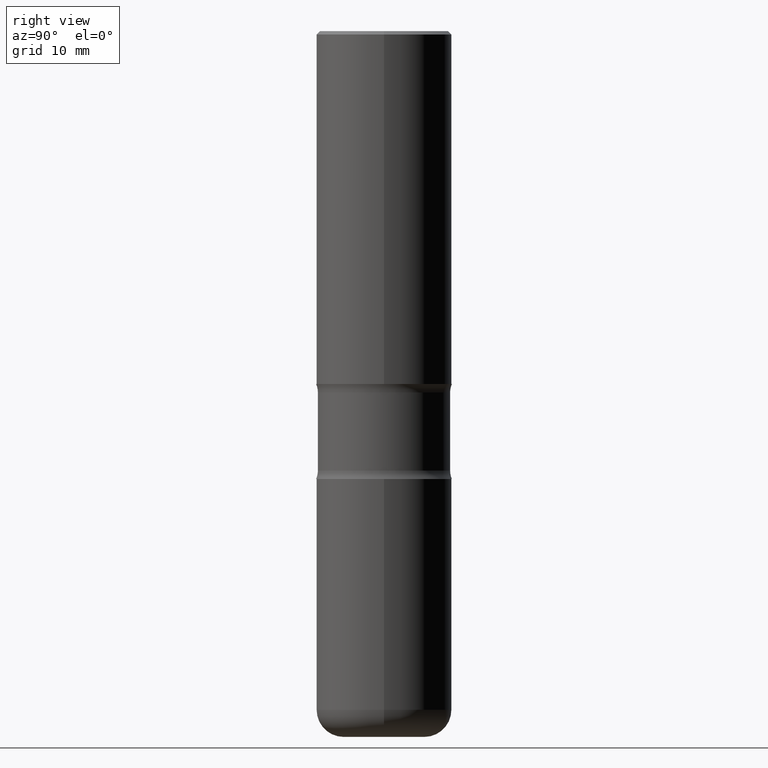
[diagram: clean part render]
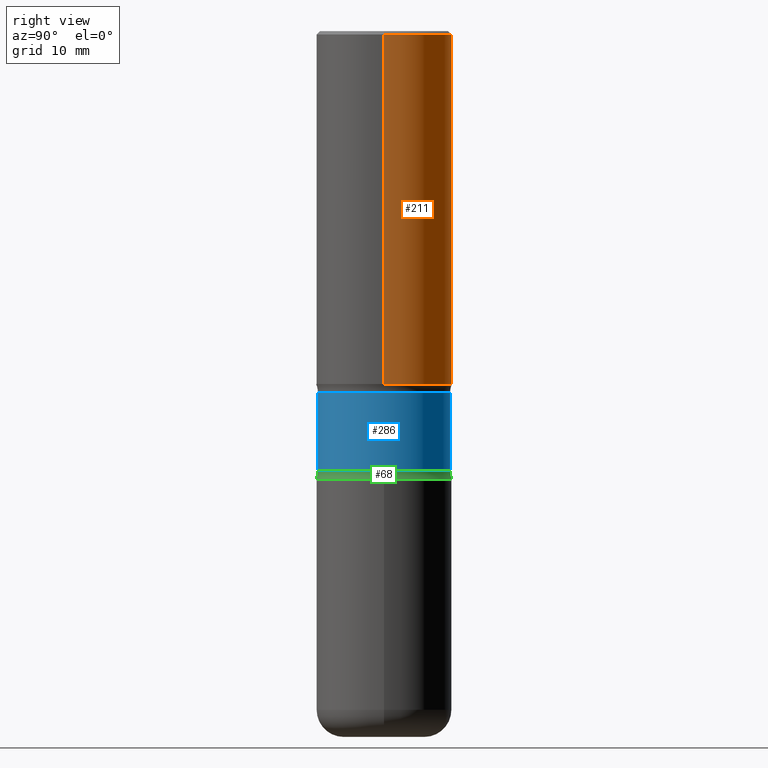
[diagram: same view with three faces highlighted in distinct colors, each labeled with its STEP entity id]
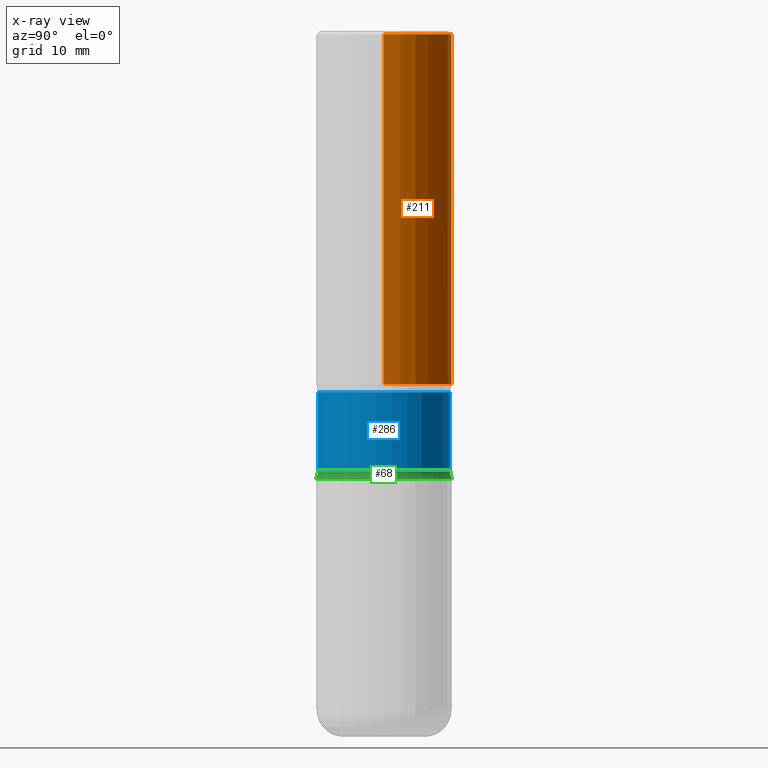
[diagram: x-ray of the same camera — body ghosted, the three highlighted faces saturated]
A machine part, right view with three faces highlighted in distinct colors.
The next image is the same camera in x-ray (body ghosted, the three faces saturated) — at least one of them is partly hidden behind the body in this view.
Their STEP definitions:

[orange] entity #211 — the highlighted cylindrical surface (partial cylindrical patch) has radius 10 mm, axis along (-0, 0, 1).
#12 = ORIENTED_EDGE ( 'NONE', *, *, #64, .T. ) ;
#34 = EDGE_LOOP ( 'NONE', ( #117, #12, #39, #416 ) ) ;
#39 = ORIENTED_EDGE ( 'NONE', *, *, #349, .F. ) ;
#59 = CIRCLE ( 'NONE', #430, 0.3936999999999998279 ) ;
#64 = EDGE_CURVE ( 'NONE', #204, #171, #121, .T. ) ;
#66 = CARTESIAN_POINT ( 'NONE',  ( -0.3937000000000001609, -8.115629352077008460E-16, -2.047299999999999898 ) ) ;
#104 = CARTESIAN_POINT ( 'NONE',  ( 0.000000000000000000, 0.000000000000000000, 0.000000000000000000 ) ) ;
#117 = ORIENTED_EDGE ( 'NONE', *, *, #328, .T. ) ;
#121 = LINE ( 'NONE', #339, #411 ) ;
#127 = DIRECTION ( 'NONE',  ( -2.445468806185136597E-29, 3.491481338843145583E-15, 1.000000000000000000 ) ) ;
#149 = DIRECTION ( 'NONE',  ( 1.000000000000000000, -6.982962677686269077E-15, 0.000000000000000000 ) ) ;
#155 = FACE_OUTER_BOUND ( 'NONE', #34, .T. ) ;
#171 = VERTEX_POINT ( 'NONE', #281 ) ;
#180 = CARTESIAN_POINT ( 'NONE',  ( 4.890937612370289799E-31, -6.982962677686315028E-17, -0.02000000000000006981 ) ) ;
#204 = VERTEX_POINT ( 'NONE', #66 ) ;
#211 = ADVANCED_FACE ( 'NONE', ( #155 ), #496, .T. ) ;
#261 = AXIS2_PLACEMENT_3D ( 'NONE', #104, #299, #506 ) ;
#264 = DIRECTION ( 'NONE',  ( 1.000000000000000000, -6.982962677686266711E-15, 0.000000000000000000 ) ) ;
#281 = CARTESIAN_POINT ( 'NONE',  ( -0.3936999999999998279, 2.679362779428218735E-15, -0.02000000000000006981 ) ) ;
#295 = DIRECTION ( 'NONE',  ( -2.445468806185136877E-29, 3.491481338843145188E-15, 1.000000000000000000 ) ) ;
#299 = DIRECTION ( 'NONE',  ( -2.445468806185136597E-29, 3.491481338843145583E-15, 1.000000000000000000 ) ) ;
#305 = VECTOR ( 'NONE', #389, 39.37007874015748143 ) ;
#328 = EDGE_CURVE ( 'NONE', #456, #204, #363, .T. ) ;
#339 = CARTESIAN_POINT ( 'NONE',  ( -0.3936999999999999389, 2.797406750687513998E-15, -1.936584745033356455E-29 ) ) ;
#340 = CARTESIAN_POINT ( 'NONE',  ( 5.006608286902829344E-29, -7.148109745013571714E-15, -2.047299999999999898 ) ) ;
#345 = EDGE_CURVE ( 'NONE', #456, #550, #518, .T. ) ;
#349 = EDGE_CURVE ( 'NONE', #550, #171, #59, .T. ) ;
#363 = CIRCLE ( 'NONE', #463, 0.3937000000000001054 ) ;
#371 = CARTESIAN_POINT ( 'NONE',  ( 0.3936999999999999389, -2.749192406205082822E-15, 1.919750796630859611E-29 ) ) ;
#389 = DIRECTION ( 'NONE',  ( -2.445468806185136877E-29, 3.491481338843145188E-15, 1.000000000000000000 ) ) ;
#411 = VECTOR ( 'NONE', #295, 39.37007874015748143 ) ;
#416 = ORIENTED_EDGE ( 'NONE', *, *, #345, .F. ) ;
#430 = AXIS2_PLACEMENT_3D ( 'NONE', #180, #127, #264 ) ;
#434 = DIRECTION ( 'NONE',  ( -2.445468806185136597E-29, 3.491481338843145583E-15, 1.000000000000000000 ) ) ;
#456 = VERTEX_POINT ( 'NONE', #474 ) ;
#463 = AXIS2_PLACEMENT_3D ( 'NONE', #340, #434, #149 ) ;
#474 = CARTESIAN_POINT ( 'NONE',  ( 0.3937000000000001054, -9.897302151218656508E-15, -2.047299999999999898 ) ) ;
#496 = CYLINDRICAL_SURFACE ( 'NONE', #261, 0.3936999999999999389 ) ;
#506 = DIRECTION ( 'NONE',  ( 1.000000000000000000, -6.982962677686266711E-15, 4.876176775795935793E-29 ) ) ;
#518 = LINE ( 'NONE', #371, #305 ) ;
#531 = CARTESIAN_POINT ( 'NONE',  ( 0.3936999999999998279, -2.770807688499514156E-15, -0.02000000000000006981 ) ) ;
#550 = VERTEX_POINT ( 'NONE', #531 ) ;

[blue] entity #286 — the highlighted cylindrical surface (partial cylindrical patch) has radius 9.7409 mm, axis along (0, -0, -1).
#15 = CARTESIAN_POINT ( 'NONE',  ( 6.231851069229550354E-29, -8.901751109387401128E-15, -2.548943352317408095 ) ) ;
#20 = EDGE_CURVE ( 'NONE', #108, #89, #323, .T. ) ;
#23 = CARTESIAN_POINT ( 'NONE',  ( 2.677966186892733991E-15, 0.3834999999999926246, -2.096756647682593400 ) ) ;
#55 = DIRECTION ( 'NONE',  ( 2.476008433645011479E-29, -3.447746854112956913E-15, -1.000000000000000000 ) ) ;
#67 = CARTESIAN_POINT ( 'NONE',  ( -2.665989521933967693E-15, -0.3835000000000073905, -2.096756647682590735 ) ) ;
#83 = VERTEX_POINT ( 'NONE', #23 ) ;
#84 = CYLINDRICAL_SURFACE ( 'NONE', #344, 0.3835000000000000075 ) ;
#89 = VERTEX_POINT ( 'NONE', #167 ) ;
#91 = DIRECTION ( 'NONE',  ( 2.476008433645011479E-29, -3.447746854112956519E-15, -1.000000000000000000 ) ) ;
#108 = VERTEX_POINT ( 'NONE', #67 ) ;
#124 = DIRECTION ( 'NONE',  ( 2.476008433645011479E-29, -3.447746854112956913E-15, -1.000000000000000000 ) ) ;
#125 = DIRECTION ( 'NONE',  ( 6.982962677686265922E-15, 1.000000000000000000, -2.849385130288670661E-15 ) ) ;
#135 = CARTESIAN_POINT ( 'NONE',  ( 1.005866236356776054E-28, -1.423043917928842489E-14, -4.094500000000000028 ) ) ;
#163 = VERTEX_POINT ( 'NONE', #405 ) ;
#167 = CARTESIAN_POINT ( 'NONE',  ( -2.665989521933955072E-15, -0.3835000000000088893, -2.548943352317407207 ) ) ;
#191 = DIRECTION ( 'NONE',  ( 6.982962677686265922E-15, 1.000000000000000000, -2.849385130288670661E-15 ) ) ;
#215 = AXIS2_PLACEMENT_3D ( 'NONE', #302, #124, #336 ) ;
#220 = CARTESIAN_POINT ( 'NONE',  ( 2.677966186892783295E-15, 0.3834999999999857967, -4.094500000000000917 ) ) ;
#250 = EDGE_CURVE ( 'NONE', #163, #89, #377, .T. ) ;
#263 = AXIS2_PLACEMENT_3D ( 'NONE', #15, #444, #191 ) ;
#286 = ADVANCED_FACE ( 'NONE', ( #468 ), #84, .T. ) ;
#300 = EDGE_LOOP ( 'NONE', ( #460, #557, #500, #555 ) ) ;
#302 = CARTESIAN_POINT ( 'NONE',  ( 5.112232974971601928E-29, -7.342725821011008933E-15, -2.096756647682592067 ) ) ;
#323 = LINE ( 'NONE', #481, #360 ) ;
#336 = DIRECTION ( 'NONE',  ( 6.982962677686265922E-15, 1.000000000000000000, -3.561731412860838918E-15 ) ) ;
#344 = AXIS2_PLACEMENT_3D ( 'NONE', #135, #55, #125 ) ;
#346 = LINE ( 'NONE', #220, #454 ) ;
#360 = VECTOR ( 'NONE', #91, 39.37007874015748143 ) ;
#377 = CIRCLE ( 'NONE', #263, 0.3835000000000000075 ) ;
#405 = CARTESIAN_POINT ( 'NONE',  ( 2.677966186892745036E-15, 0.3834999999999911258, -2.548943352317409428 ) ) ;
#440 = CIRCLE ( 'NONE', #215, 0.3835000000000000075 ) ;
#444 = DIRECTION ( 'NONE',  ( 2.476008433645011479E-29, -3.447746854112956913E-15, -1.000000000000000000 ) ) ;
#454 = VECTOR ( 'NONE', #520, 39.37007874015748143 ) ;
#460 = ORIENTED_EDGE ( 'NONE', *, *, #479, .T. ) ;
#468 = FACE_OUTER_BOUND ( 'NONE', #300, .T. ) ;
#471 = EDGE_CURVE ( 'NONE', #83, #163, #346, .T. ) ;
#479 = EDGE_CURVE ( 'NONE', #83, #108, #440, .T. ) ;
#481 = CARTESIAN_POINT ( 'NONE',  ( -2.631000982145281374E-15, -0.3835000000000142184, -4.094499999999998252 ) ) ;
#500 = ORIENTED_EDGE ( 'NONE', *, *, #250, .F. ) ;
#520 = DIRECTION ( 'NONE',  ( 2.476008433645011479E-29, -3.447746854112956519E-15, -1.000000000000000000 ) ) ;
#555 = ORIENTED_EDGE ( 'NONE', *, *, #471, .F. ) ;
#557 = ORIENTED_EDGE ( 'NONE', *, *, #20, .T. ) ;

[green] entity #68 — the highlighted toroidal blend (fillet) surface has major radius 12.9159 mm and minor (blend) radius 3.175 mm.
#15 = CARTESIAN_POINT ( 'NONE',  ( 6.231851069229550354E-29, -8.901751109387401128E-15, -2.548943352317408095 ) ) ;
#32 = DIRECTION ( 'NONE',  ( 2.476008433645011479E-29, -3.447746854112956913E-15, -1.000000000000000000 ) ) ;
#33 = CARTESIAN_POINT ( 'NONE',  ( -2.700978061722589721E-15, -0.3937000000000092648, -2.598399999999998489 ) ) ;
#38 = DIRECTION ( 'NONE',  ( 6.982962677686265922E-15, 1.000000000000000000, -2.775563112689115117E-15 ) ) ;
#42 = CARTESIAN_POINT ( 'NONE',  ( 3.550836521603528374E-15, 0.5084999999999910703, -2.548943352317409428 ) ) ;
#50 = DIRECTION ( 'NONE',  ( -1.000000000000000000, 6.982962677686265922E-15, -4.883557194083112901E-29 ) ) ;
#58 = EDGE_LOOP ( 'NONE', ( #316, #166, #420, #322 ) ) ;
#68 = ADVANCED_FACE ( 'NONE', ( #298 ), #199, .F. ) ;
#86 = AXIS2_PLACEMENT_3D ( 'NONE', #170, #558, #207 ) ;
#89 = VERTEX_POINT ( 'NONE', #167 ) ;
#95 = EDGE_CURVE ( 'NONE', #382, #206, #351, .T. ) ;
#128 = AXIS2_PLACEMENT_3D ( 'NONE', #358, #498, #410 ) ;
#133 = CARTESIAN_POINT ( 'NONE',  ( 2.749192406205147903E-15, 0.3936999999999912236, -2.598400000000000709 ) ) ;
#158 = AXIS2_PLACEMENT_3D ( 'NONE', #42, #50, #426 ) ;
#163 = VERTEX_POINT ( 'NONE', #405 ) ;
#166 = ORIENTED_EDGE ( 'NONE', *, *, #95, .F. ) ;
#167 = CARTESIAN_POINT ( 'NONE',  ( -2.665989521933955072E-15, -0.3835000000000088893, -2.548943352317407207 ) ) ;
#170 = CARTESIAN_POINT ( 'NONE',  ( -3.488563231866761079E-15, -0.5085000000000088338, -2.548943352317405875 ) ) ;
#191 = DIRECTION ( 'NONE',  ( 6.982962677686265922E-15, 1.000000000000000000, -2.849385130288670661E-15 ) ) ;
#199 = TOROIDAL_SURFACE ( 'NONE', #128, 0.5084999999999999520, 0.1249999999999999584 ) ;
#206 = VERTEX_POINT ( 'NONE', #33 ) ;
#207 = DIRECTION ( 'NONE',  ( 6.860497997771532351E-15, 1.000000000000000000, 0.000000000000000000 ) ) ;
#210 = CIRCLE ( 'NONE', #86, 0.1249999999999999584 ) ;
#233 = CIRCLE ( 'NONE', #158, 0.1249999999999999584 ) ;
#250 = EDGE_CURVE ( 'NONE', #163, #89, #377, .T. ) ;
#263 = AXIS2_PLACEMENT_3D ( 'NONE', #15, #444, #191 ) ;
#298 = FACE_OUTER_BOUND ( 'NONE', #58, .T. ) ;
#308 = EDGE_CURVE ( 'NONE', #206, #89, #210, .T. ) ;
#316 = ORIENTED_EDGE ( 'NONE', *, *, #308, .F. ) ;
#322 = ORIENTED_EDGE ( 'NONE', *, *, #250, .T. ) ;
#351 = CIRCLE ( 'NONE', #470, 0.3937000000000002164 ) ;
#358 = CARTESIAN_POINT ( 'NONE',  ( 6.233361456825190849E-29, -8.899588148384518828E-15, -2.548943352317407651 ) ) ;
#377 = CIRCLE ( 'NONE', #263, 0.3835000000000000075 ) ;
#382 = VERTEX_POINT ( 'NONE', #133 ) ;
#405 = CARTESIAN_POINT ( 'NONE',  ( 2.677966186892745036E-15, 0.3834999999999911258, -2.548943352317409428 ) ) ;
#410 = DIRECTION ( 'NONE',  ( 6.982962677686265133E-15, 1.000000000000000000, -3.447746854112956913E-15 ) ) ;
#420 = ORIENTED_EDGE ( 'NONE', *, *, #461, .T. ) ;
#421 = CARTESIAN_POINT ( 'NONE',  ( 6.354306145991457514E-29, -9.072265110850029467E-15, -2.598399999999999821 ) ) ;
#426 = DIRECTION ( 'NONE',  ( -6.982962677686265133E-15, -1.000000000000000000, 0.000000000000000000 ) ) ;
#444 = DIRECTION ( 'NONE',  ( 2.476008433645011479E-29, -3.447746854112956913E-15, -1.000000000000000000 ) ) ;
#461 = EDGE_CURVE ( 'NONE', #382, #163, #233, .T. ) ;
#470 = AXIS2_PLACEMENT_3D ( 'NONE', #421, #32, #38 ) ;
#498 = DIRECTION ( 'NONE',  ( 2.476008433645011479E-29, -3.447746854112956913E-15, -1.000000000000000000 ) ) ;
#558 = DIRECTION ( 'NONE',  ( 1.000000000000000000, -6.860497997771530774E-15, 4.841334472591514894E-29 ) ) ;